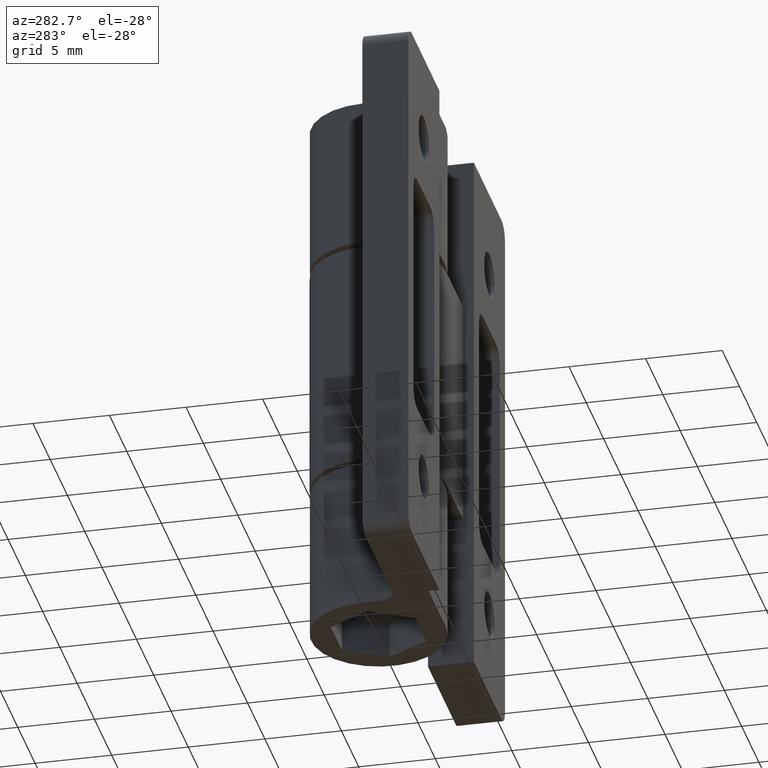
[diagram: clean part render]
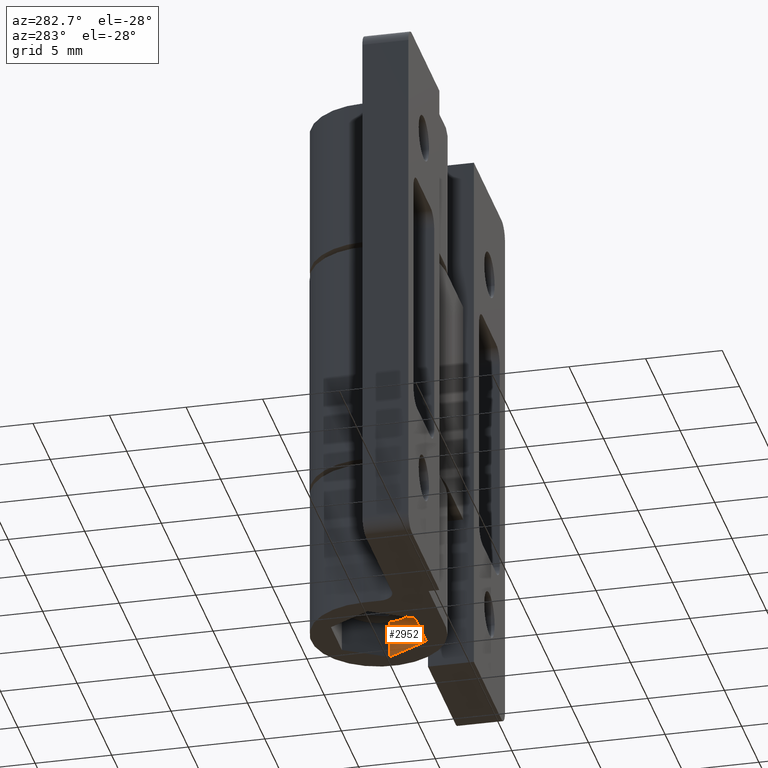
[diagram: same view with one face highlighted and labeled with its STEP entity id]
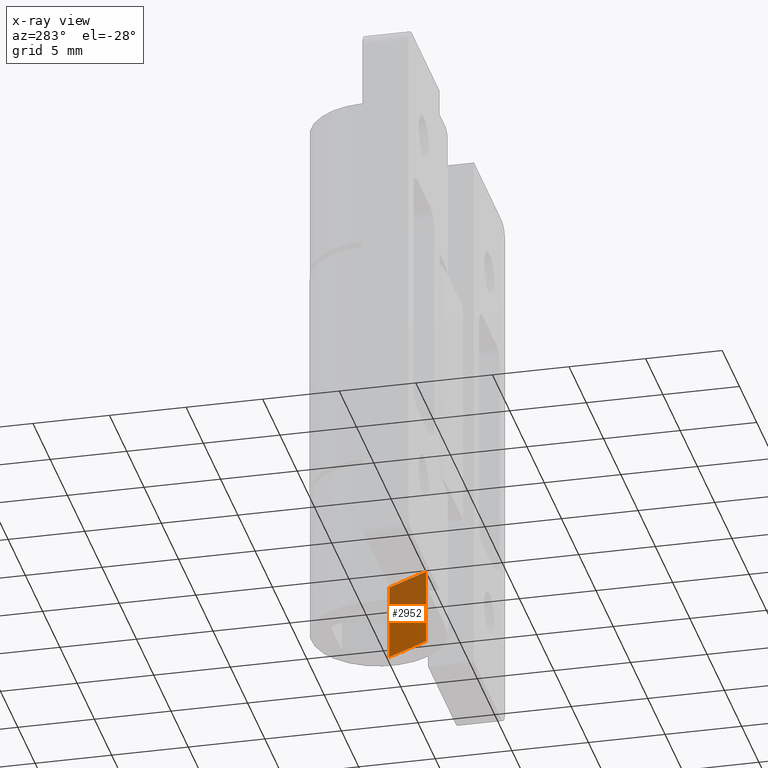
[diagram: x-ray of the same camera — body ghosted, the highlighted face saturated]
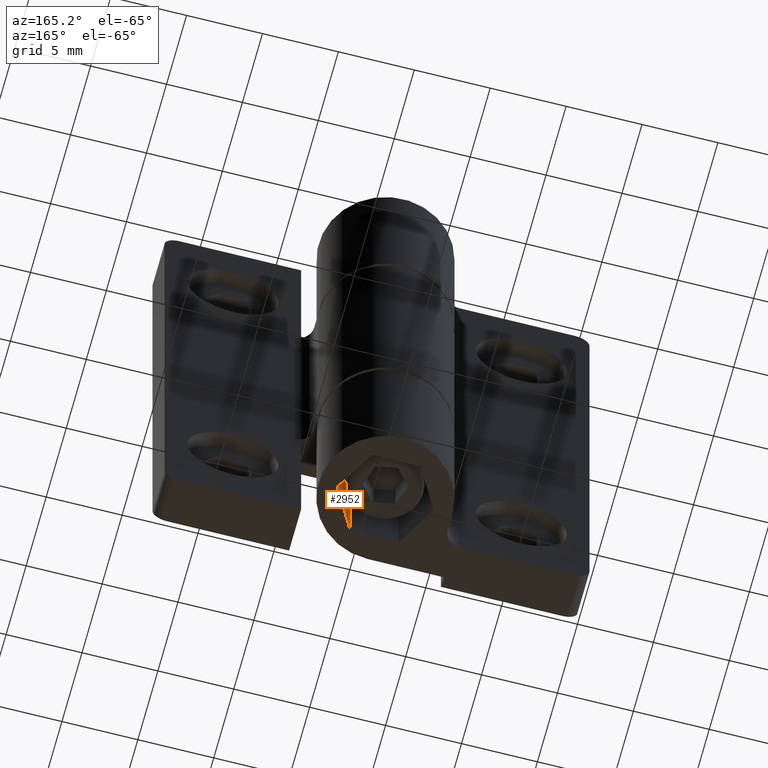
[diagram: same view with one face highlighted and labeled with its STEP entity id]
A machine part, auxiliary view. The second image highlights one B-rep face of the part: STEP entity #2952.
The next image is the same camera in x-ray: the body ghosted, the highlighted face saturated — about 48% of this face is hidden behind the body in this view.
A second angle (auxiliary view) of the same face is appended — the face is thin or edge-on in the first view.
In plain terms, the highlighted planar face has unit normal (-0.866, 0.5, 0).
Its self-contained STEP definition (entity closure, byte-faithful):
#364=PLANE('',#3099);
#448=FACE_OUTER_BOUND('',#572,.T.);
#572=EDGE_LOOP('',(#2092,#2093,#2094,#2095));
#720=LINE('',#3914,#876);
#734=LINE('',#3945,#890);
#742=LINE('',#3962,#898);
#743=LINE('',#3963,#899);
#876=VECTOR('',#3391,3.17542648055159);
#890=VECTOR('',#3413,5.);
#898=VECTOR('',#3429,3.17542648055159);
#899=VECTOR('',#3430,5.);
#1113=VERTEX_POINT('',#3912);
#1114=VERTEX_POINT('',#3913);
#1127=VERTEX_POINT('',#3943);
#1132=VERTEX_POINT('',#3961);
#1533=EDGE_CURVE('',#1113,#1114,#720,.T.);
#1548=EDGE_CURVE('',#1114,#1127,#734,.T.);
#1556=EDGE_CURVE('',#1132,#1127,#742,.T.);
#1557=EDGE_CURVE('',#1132,#1113,#743,.T.);
#2092=ORIENTED_EDGE('',*,*,#1533,.T.);
#2093=ORIENTED_EDGE('',*,*,#1548,.T.);
#2094=ORIENTED_EDGE('',*,*,#1556,.F.);
#2095=ORIENTED_EDGE('',*,*,#1557,.T.);
#2952=ADVANCED_FACE('',(#448),#364,.T.);
#3099=AXIS2_PLACEMENT_3D('',#3960,#3427,#3428);
#3391=DIRECTION('',(0.499999999991862,0.,0.866025403789137));
#3413=DIRECTION('',(0.,1.,0.));
#3427=DIRECTION('center_axis',(-0.866025403789137,0.,0.499999999991862));
#3428=DIRECTION('ref_axis',(0.499999999991862,0.,0.866025403789137));
#3429=DIRECTION('',(0.499999999991862,0.,0.866025403789137));
#3430=DIRECTION('',(0.,-1.,0.));
#3912=CARTESIAN_POINT('',(15.5877132403016,13.,2.35000000000745));
#3913=CARTESIAN_POINT('',(17.1754264805516,13.,5.10000000002984));
#3914=CARTESIAN_POINT('',(15.9846415503641,13.,3.03750000001305));
#3943=CARTESIAN_POINT('',(17.1754264805516,18.,5.10000000002984));
#3945=CARTESIAN_POINT('',(17.1754264805516,0.,5.10000000002984));
#3960=CARTESIAN_POINT('Origin',(15.5877132403016,0.,2.35000000000745));
#3961=CARTESIAN_POINT('',(15.5877132403016,18.,2.35000000000745));
#3962=CARTESIAN_POINT('',(17.1754264805516,18.,5.10000000002984));
#3963=CARTESIAN_POINT('',(15.5877132403016,0.,2.35000000000745));